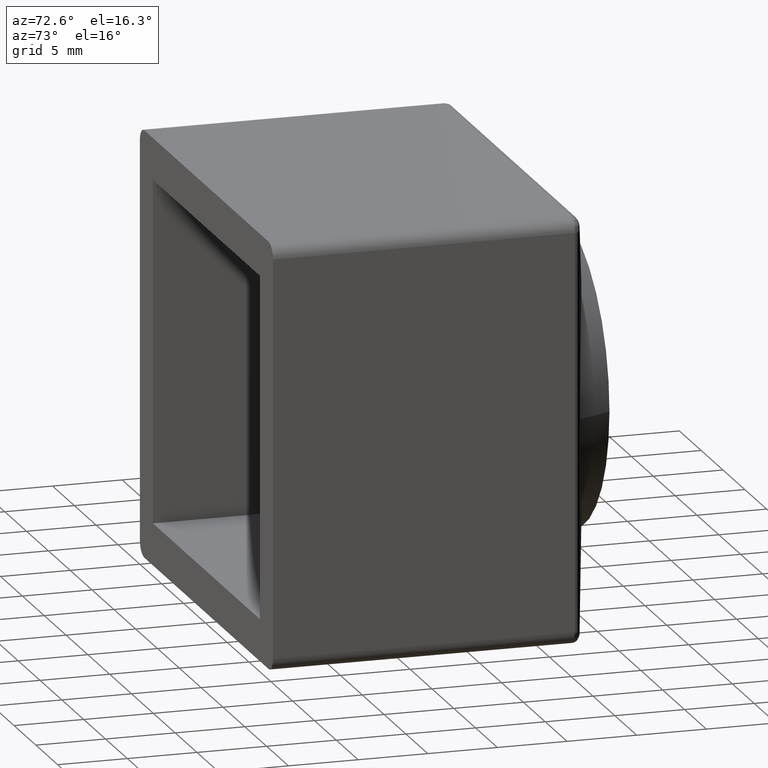
[diagram: clean part render]
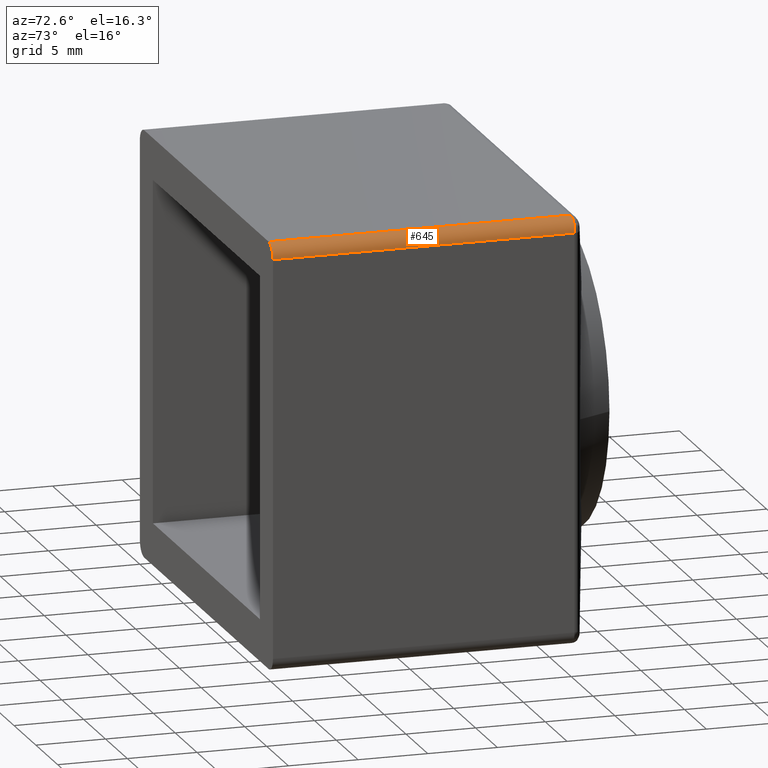
[diagram: same view with one face highlighted and labeled with its STEP entity id]
A machine part, auxiliary view. The second image highlights one B-rep face of the part: STEP entity #645.
In plain terms, the highlighted cylindrical surface (edge-blend (fillet) strip) has radius 1 mm, axis along (0, 1, 0).
Its self-contained STEP definition (entity closure, byte-faithful):
#21=CYLINDRICAL_SURFACE('',#711,1.);
#47=B_SPLINE_CURVE_WITH_KNOTS('',3,(#1262,#1263,#1264,#1265),
 .UNSPECIFIED.,.F.,.F.,(4,4),(-0.024029042237403,-2.18380137029403E-17),
 .UNSPECIFIED.);
#64=ELLIPSE('',#706,1.01700223835156,1.);
#66=ELLIPSE('',#710,1.0137790318941,1.);
#91=CIRCLE('',#712,1.);
#125=FACE_OUTER_BOUND('',#168,.T.);
#168=EDGE_LOOP('',(#531,#532,#533,#534,#535,#536));
#200=LINE('',#1082,#240);
#211=LINE('',#1273,#251);
#240=VECTOR('',#803,21.6395591301993);
#251=VECTOR('',#866,21.6519933315227);
#291=VERTEX_POINT('',#1079);
#292=VERTEX_POINT('',#1081);
#306=VERTEX_POINT('',#1212);
#307=VERTEX_POINT('',#1214);
#309=VERTEX_POINT('',#1239);
#310=VERTEX_POINT('',#1271);
#359=EDGE_CURVE('',#292,#291,#200,.T.);
#384=EDGE_CURVE('',#306,#307,#64,.T.);
#388=EDGE_CURVE('',#309,#291,#66,.T.);
#389=EDGE_CURVE('',#307,#309,#47,.T.);
#391=EDGE_CURVE('',#310,#292,#91,.T.);
#392=EDGE_CURVE('',#306,#310,#211,.T.);
#531=ORIENTED_EDGE('',*,*,#391,.T.);
#532=ORIENTED_EDGE('',*,*,#359,.T.);
#533=ORIENTED_EDGE('',*,*,#388,.F.);
#534=ORIENTED_EDGE('',*,*,#389,.F.);
#535=ORIENTED_EDGE('',*,*,#384,.F.);
#536=ORIENTED_EDGE('',*,*,#392,.T.);
#645=ADVANCED_FACE('',(#125),#21,.T.);
#706=AXIS2_PLACEMENT_3D('',#1215,#852,#853);
#710=AXIS2_PLACEMENT_3D('',#1241,#860,#861);
#711=AXIS2_PLACEMENT_3D('',#1270,#862,#863);
#712=AXIS2_PLACEMENT_3D('',#1272,#864,#865);
#803=DIRECTION('',(2.01858731750028E-16,1.,0.));
#852=DIRECTION('center_axis',(0.,0.98328200498446,0.182089260182308));
#853=DIRECTION('ref_axis',(0.,-0.182089260182308,0.98328200498446));
#860=DIRECTION('center_axis',(0.164313011556665,0.986408249272673,0.));
#861=DIRECTION('ref_axis',(0.986408249272673,-0.164313011556665,0.));
#862=DIRECTION('center_axis',(2.01858731750028E-16,1.,0.));
#863=DIRECTION('ref_axis',(0.707106781186546,0.,0.707106781186549));
#864=DIRECTION('center_axis',(0.,1.,0.));
#865=DIRECTION('ref_axis',(0.707106781186546,0.,0.707106781186549));
#866=DIRECTION('',(-2.01858731750028E-16,-1.,0.));
#1079=CARTESIAN_POINT('',(30.5,21.6395591301993,14.25));
#1081=CARTESIAN_POINT('',(30.5,0.,14.25));
#1082=CARTESIAN_POINT('',(30.5,5.5,14.25));
#1212=CARTESIAN_POINT('',(29.5,21.6519933315227,15.25));
#1214=CARTESIAN_POINT('',(29.9547219031515,21.6722463912916,15.1406334772477));
#1215=CARTESIAN_POINT('Origin',(29.5,21.8371785167079,14.25));
#1239=CARTESIAN_POINT('',(30.3134275361746,21.6706378275108,14.8316662646165));
#1241=CARTESIAN_POINT('Origin',(29.5,21.8061362159829,14.25));
#1262=CARTESIAN_POINT('Ctrl Pts',(29.9547219031515,21.6722463912916,15.1406334772477));
#1263=CARTESIAN_POINT('Ctrl Pts',(30.0954143652044,21.6855486052314,15.068801521973));
#1264=CARTESIAN_POINT('Ctrl Pts',(30.2219500865096,21.6858758744909,14.9595923298244));
#1265=CARTESIAN_POINT('Ctrl Pts',(30.3134275361746,21.6706378275108,14.8316662646165));
#1270=CARTESIAN_POINT('Origin',(29.5,5.5,14.25));
#1271=CARTESIAN_POINT('',(29.5,0.,15.25));
#1272=CARTESIAN_POINT('Origin',(29.5,-5.55111512312578E-15,14.25));
#1273=CARTESIAN_POINT('',(29.5,5.5,15.25));